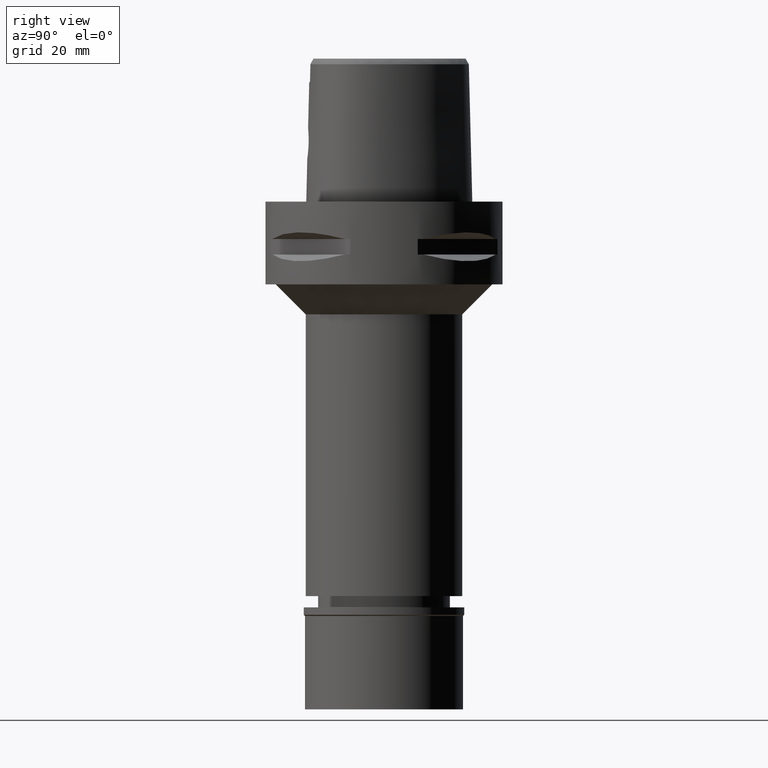
[diagram: clean part render]
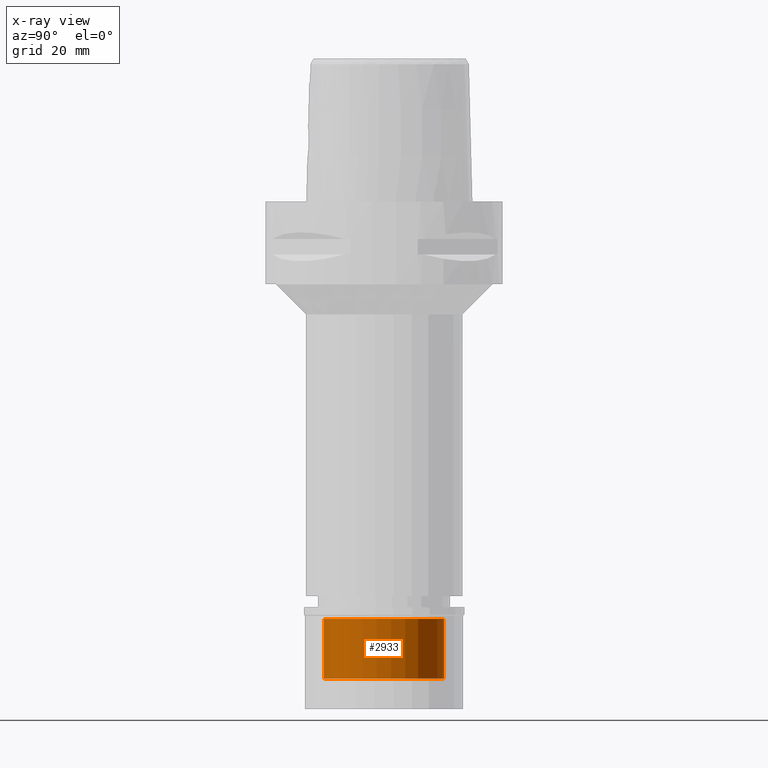
[diagram: x-ray — body ghosted, one internal face saturated and labeled with its STEP entity id]
A machine part, right view, then the same camera in x-ray: the body is ghosted and one INTERNAL B-rep face — a face not visible from any outside direction — is saturated and labeled: STEP entity #2933.
In plain terms, the highlighted cylindrical surface (partial cylindrical patch) has radius 16 mm, axis along (0, 0, -1).
Its self-contained STEP definition (entity closure, byte-faithful):
#67 = ORIENTED_EDGE ( 'NONE', *, *, #685, .F. ) ;
#75 = VERTEX_POINT ( 'NONE', #1269 ) ;
#99 = VECTOR ( 'NONE', #3573, 1000.000000000000000 ) ;
#124 = CARTESIAN_POINT ( 'NONE',  ( 0.0000000000000000000, -16.00000000000000000, -3.100000000000000089 ) ) ;
#407 = CARTESIAN_POINT ( 'NONE',  ( 0.0000000000000000000, 0.0000000000000000000, 0.0000000000000000000 ) ) ;
#418 = VECTOR ( 'NONE', #4065, 1000.000000000000000 ) ;
#535 = CARTESIAN_POINT ( 'NONE',  ( 0.0000000000000000000, 16.00000000000000000, -3.100000000000000089 ) ) ;
#602 = CARTESIAN_POINT ( 'NONE',  ( 0.0000000000000000000, 16.00000000000000000, -18.89999999999999858 ) ) ;
#685 = EDGE_CURVE ( 'NONE', #75, #4869, #4717, .T. ) ;
#748 = CARTESIAN_POINT ( 'NONE',  ( 0.0000000000000000000, -16.00000000000000000, -18.89999999999999858 ) ) ;
#806 = CIRCLE ( 'NONE', #3631, 16.00000000000000000 ) ;
#840 = EDGE_CURVE ( 'NONE', #1636, #1177, #1084, .T. ) ;
#1080 = EDGE_CURVE ( 'NONE', #75, #1636, #806, .T. ) ;
#1084 = LINE ( 'NONE', #2173, #418 ) ;
#1085 = ORIENTED_EDGE ( 'NONE', *, *, #1080, .T. ) ;
#1177 = VERTEX_POINT ( 'NONE', #124 ) ;
#1269 = CARTESIAN_POINT ( 'NONE',  ( 0.0000000000000000000, 16.00000000000000000, -18.89999999999999858 ) ) ;
#1636 = VERTEX_POINT ( 'NONE', #748 ) ;
#1990 = ORIENTED_EDGE ( 'NONE', *, *, #840, .T. ) ;
#2038 = DIRECTION ( 'NONE',  ( 0.0000000000000000000, 0.0000000000000000000, 1.000000000000000000 ) ) ;
#2173 = CARTESIAN_POINT ( 'NONE',  ( 0.0000000000000000000, -16.00000000000000000, -18.89999999999999858 ) ) ;
#2424 = DIRECTION ( 'NONE',  ( 0.0000000000000000000, 0.0000000000000000000, -1.000000000000000000 ) ) ;
#2661 = EDGE_LOOP ( 'NONE', ( #1085, #1990, #3402, #67 ) ) ;
#2742 = FACE_OUTER_BOUND ( 'NONE', #2661, .T. ) ;
#2781 = EDGE_CURVE ( 'NONE', #1177, #4869, #3775, .T. ) ;
#2816 = DIRECTION ( 'NONE',  ( 0.0000000000000000000, 0.0000000000000000000, -1.000000000000000000 ) ) ;
#2933 = ADVANCED_FACE ( 'NONE', ( #2742 ), #3913, .F. ) ;
#3092 = CARTESIAN_POINT ( 'NONE',  ( 0.0000000000000000000, 0.0000000000000000000, -3.100000000000000089 ) ) ;
#3402 = ORIENTED_EDGE ( 'NONE', *, *, #2781, .T. ) ;
#3491 = DIRECTION ( 'NONE',  ( 0.0000000000000000000, -1.000000000000000000, 0.0000000000000000000 ) ) ;
#3573 = DIRECTION ( 'NONE',  ( 0.0000000000000000000, 0.0000000000000000000, 1.000000000000000000 ) ) ;
#3614 = AXIS2_PLACEMENT_3D ( 'NONE', #407, #2816, #4637 ) ;
#3631 = AXIS2_PLACEMENT_3D ( 'NONE', #4567, #2424, #4732 ) ;
#3775 = CIRCLE ( 'NONE', #4393, 16.00000000000000000 ) ;
#3913 = CYLINDRICAL_SURFACE ( 'NONE', #3614, 16.00000000000000000 ) ;
#4065 = DIRECTION ( 'NONE',  ( 0.0000000000000000000, 0.0000000000000000000, 1.000000000000000000 ) ) ;
#4393 = AXIS2_PLACEMENT_3D ( 'NONE', #3092, #2038, #3491 ) ;
#4567 = CARTESIAN_POINT ( 'NONE',  ( 0.0000000000000000000, 0.0000000000000000000, -18.89999999999999858 ) ) ;
#4637 = DIRECTION ( 'NONE',  ( 0.0000000000000000000, -1.000000000000000000, 0.0000000000000000000 ) ) ;
#4717 = LINE ( 'NONE', #602, #99 ) ;
#4732 = DIRECTION ( 'NONE',  ( 0.0000000000000000000, 1.000000000000000000, 0.0000000000000000000 ) ) ;
#4869 = VERTEX_POINT ( 'NONE', #535 ) ;